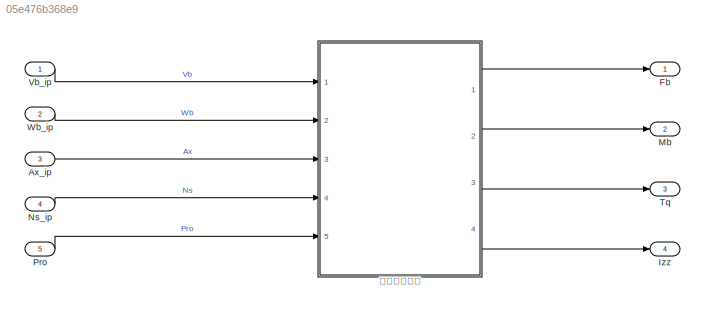
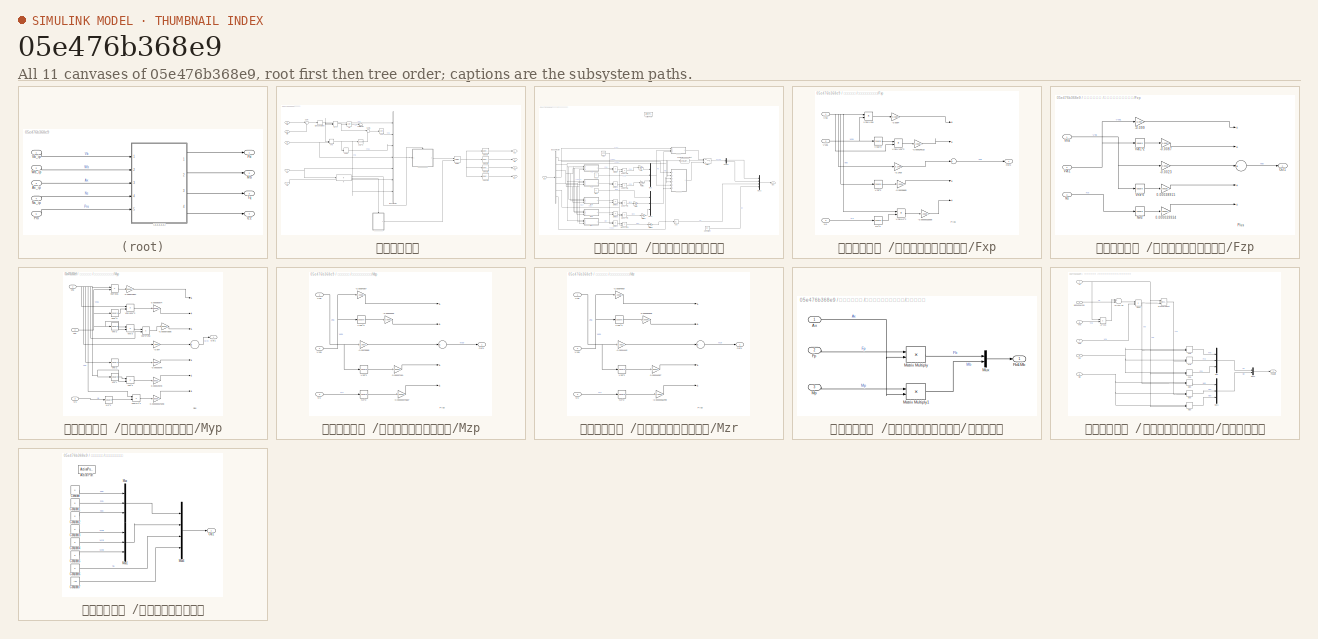
[diagram: thumbnail index - all 11 canvases of the model, root first then tree order]
MODEL slx_05e476b368e9
KIND model
CONFIG AbsTol = auto
CONFIG EnableMultiTasking = off
CONFIG FixedStep = auto
CONFIG MaxStep = auto
CONFIG MinStep = auto
CONFIG RelTol = 1e-3
CONFIG SampleTimeConstraint = Unconstrained
CONFIG Solver = FixedStepAuto
CONFIG SolverName = FixedStepAuto
CONFIG StartTime = 0.0
CONFIG StopTime = 10.0
BLOCK [Inport] Ax_ip
  IconDisplay = Port number
  Port = 3
  PortDimensions = 3
BLOCK [Outport] Fb
  IconDisplay = Port number
BLOCK [Outport] Izz
  IconDisplay = Port number
  Port = 4
BLOCK [Outport] Mb
  IconDisplay = Port number
  Port = 2
BLOCK [Inport] Ns_ip
  IconDisplay = Port number
  Port = 4
  PortDimensions = 1
BLOCK [Inport] Pro
  IconDisplay = Port number
  Port = 5
  PortDimensions = 1
BLOCK [Outport] Tq
  IconDisplay = Port number
  Port = 3
BLOCK [Inport] Vb_ip
  IconDisplay = Port number
  PortDimensions = 3
BLOCK [Inport] Wb_ip
  IconDisplay = Port number
  Port = 2
  PortDimensions = 3
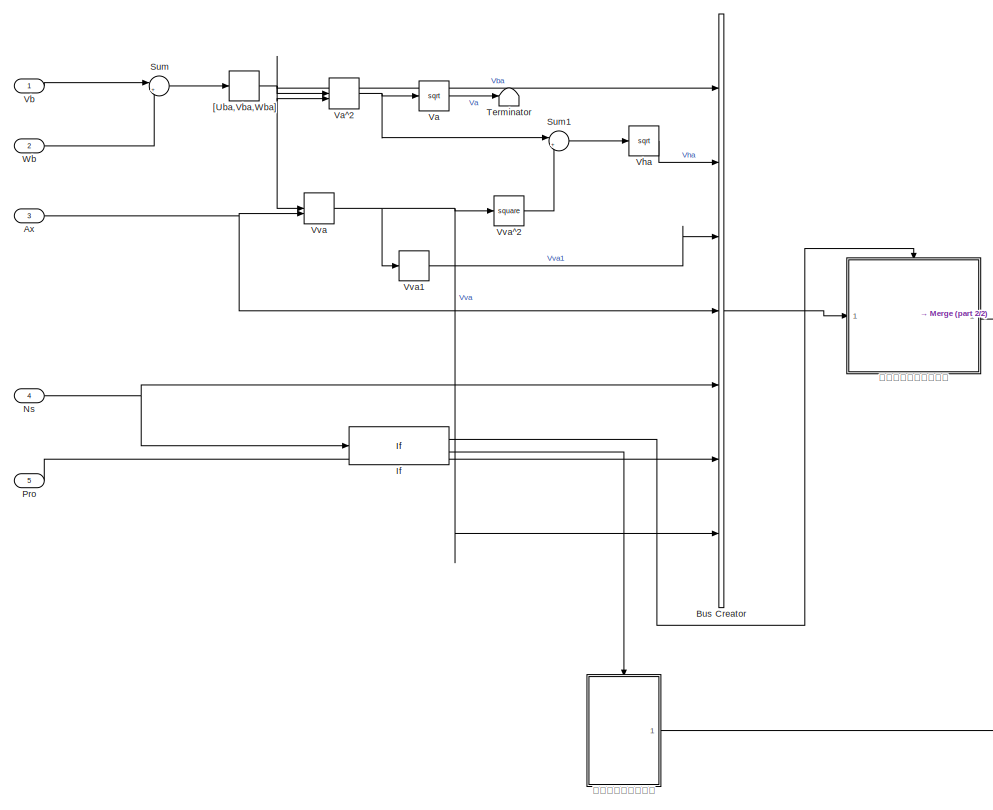
[diagram: 涵道风扇模型  - part 1/2, left side, full height]
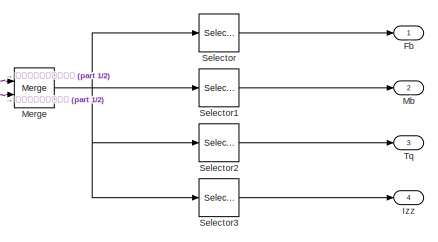
[diagram: 涵道风扇模型  - part 2/2, middle right region]
BLOCK [SubSystem] 涵道风扇模型 
  Ports = [5, 4]
  RequestExecContextInheritance = off
BLOCK [Inport] 涵道风扇模型 /Ax
  IconDisplay = Port number
  Port = 3
BLOCK [BusCreator] 涵道风扇模型 /Bus Creator
  DisplayOption = bar
  InheritFromInputs = on
  Inputs = 7
  Ports = [7, 1]
BLOCK [Outport] 涵道风扇模型 /Fb
  IconDisplay = Port number
BLOCK [If] 涵道风扇模型 /If
  IfExpression = u1 > 1
  Ports = [1, 2]
BLOCK [Outport] 涵道风扇模型 /Izz
  IconDisplay = Port number
  Port = 4
BLOCK [Outport] 涵道风扇模型 /Mb
  IconDisplay = Port number
  Port = 2
BLOCK [Merge] 涵道风扇模型 /Merge
  Ports = [2, 1]
BLOCK [Inport] 涵道风扇模型 /Ns
  IconDisplay = Port number
  Port = 4
BLOCK [Inport] 涵道风扇模型 /Pro
  IconDisplay = Port number
  Port = 5
BLOCK [Selector] 涵道风扇模型 /Selector
  IndexOptions = Index vector (dialog)
  Indices = [1:3]
  InputPortWidth = 8
  OutputSizes = 1
  Ports = [1, 1]
BLOCK [Selector] 涵道风扇模型 /Selector1
  IndexOptions = Index vector (dialog)
  Indices = [4:6]
  InputPortWidth = 8
  OutputSizes = 1
  Ports = [1, 1]
BLOCK [Selector] 涵道风扇模型 /Selector2
  IndexOptions = Index vector (dialog)
  Indices = [7]
  InputPortWidth = 8
  OutputSizes = 1
  Ports = [1, 1]
BLOCK [Selector] 涵道风扇模型 /Selector3
  IndexOptions = Index vector (dialog)
  Indices = 8
  InputPortWidth = 8
  OutputSizes = 1
  Ports = [1, 1]
BLOCK [Sum] 涵道风扇模型 /Sum
  IconShape = round
  InputSameDT = off
  Inputs = |+-
  OutDataTypeStr = Inherit: Inherit via internal rule
  Ports = [2, 1]
  SaturateOnIntegerOverflow = off
BLOCK [Sum] 涵道风扇模型 /Sum1
  IconShape = round
  InputSameDT = off
  Inputs = |+-
  OutDataTypeStr = Inherit: Inherit via internal rule
  Ports = [2, 1]
  SaturateOnIntegerOverflow = off
BLOCK [Terminator] 涵道风扇模型 /Terminator
BLOCK [Outport] 涵道风扇模型 /Tq
  IconDisplay = Port number
  Port = 3
BLOCK [Sqrt] 涵道风扇模型 /Va
BLOCK [DotProduct] 涵道风扇模型 /Va^2
  OutDataTypeStr = Inherit: Inherit via internal rule
BLOCK [Inport] 涵道风扇模型 /Vb
  IconDisplay = Port number
BLOCK [Sqrt] 涵道风扇模型 /Vha
BLOCK [DotProduct] 涵道风扇模型 /Vva
  OutDataTypeStr = Inherit: Inherit via internal rule
BLOCK [UnaryMinus] 涵道风扇模型 /Vva1
BLOCK [Math] 涵道风扇模型 /Vva^2
  Operator = square
  Ports = [1, 1]
BLOCK [Inport] 涵道风扇模型 /Wb
  IconDisplay = Port number
  Port = 2
BLOCK [UnaryMinus] 涵道风扇模型 /[Uba,Vba,Wba]
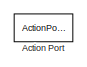
[diagram: 涵道风扇模型 /求解涵道风扇气动载荷 - part 1/4, top center region]
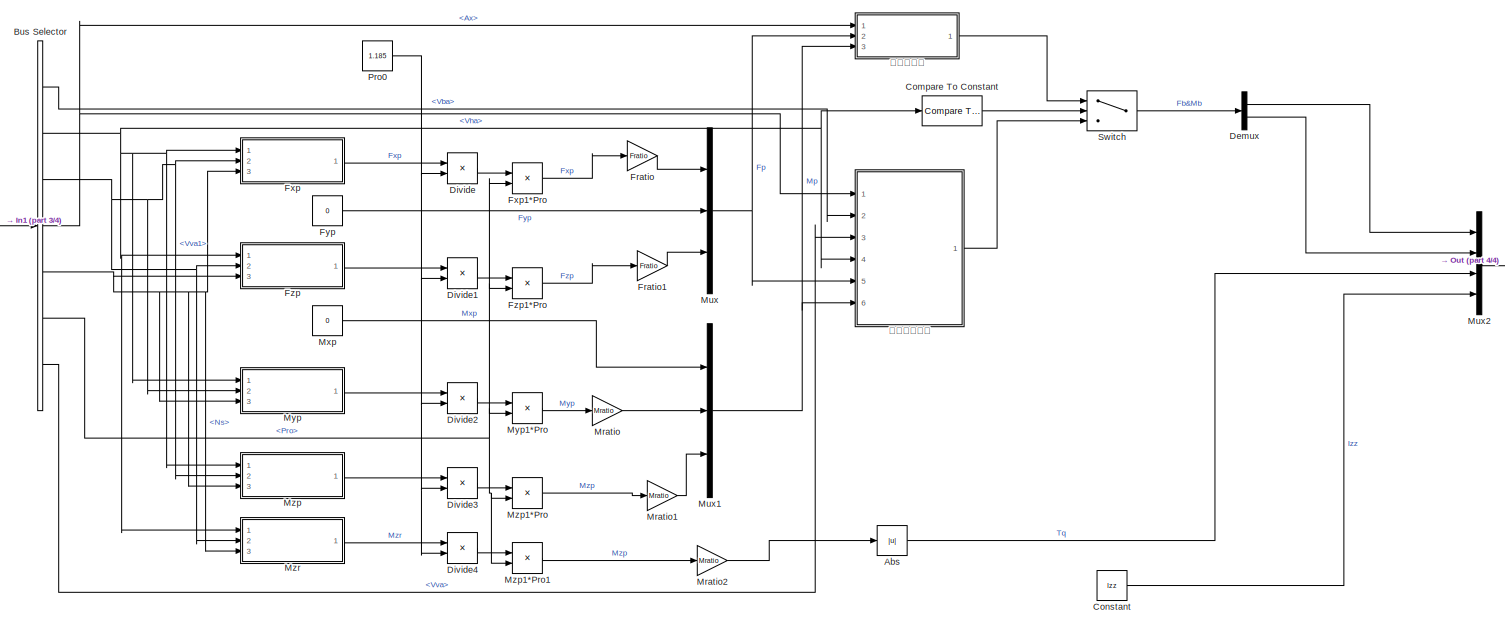
[diagram: 涵道风扇模型 /求解涵道风扇气动载荷 - part 2/4, full width, middle band]
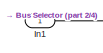
[diagram: 涵道风扇模型 /求解涵道风扇气动载荷 - part 3/4, middle left region]
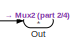
[diagram: 涵道风扇模型 /求解涵道风扇气动载荷 - part 4/4, middle right region]
BLOCK [SubSystem] 涵道风扇模型 /求解涵道风扇气动载荷
  Ports = [1, 1, 0, 0, 0, 0, 0, 1]
  RequestExecContextInheritance = off
  TreatAsAtomicUnit = on
BLOCK [Abs] 涵道风扇模型 /求解涵道风扇气动载荷/Abs
  SaturateOnIntegerOverflow = off
BLOCK [ActionPort] 涵道风扇模型 /求解涵道风扇气动载荷/Action Port
  ActionType = then
BLOCK [BusSelector] 涵道风扇模型 /求解涵道风扇气动载荷/Bus Selector
  OutputAsBus = off
  OutputSignals = Vba,Vha,Vva1,Ax,Ns,Pro,Vva
  Ports = [1, 7]
BLOCK [Reference] 涵道风扇模型 /求解涵道风扇气动载荷/Compare To Constant  REF=simulink/Logic and Bit
Operations/Compare
To Constant
  Ports = [1, 1]
  SourceBlock = simulink/Logic and Bit\nOperations/Compare\nTo Constant
  SourceProductBaseCode = SL
  SourceProductName = Simulink
  SourceType = Compare To Constant
BLOCK [Constant] 涵道风扇模型 /求解涵道风扇气动载荷/Constant
  Value = Izz
BLOCK [Demux] 涵道风扇模型 /求解涵道风扇气动载荷/Demux
  DisplayOption = bar
  Outputs = 2
  Ports = [1, 2]
BLOCK [Product] 涵道风扇模型 /求解涵道风扇气动载荷/Divide
  InputSameDT = off
  Inputs = */
  OutDataTypeStr = Inherit: Inherit via internal rule
  Ports = [2, 1]
  RndMeth = Floor
  SaturateOnIntegerOverflow = off
BLOCK [Product] 涵道风扇模型 /求解涵道风扇气动载荷/Divide1
  InputSameDT = off
  Inputs = */
  OutDataTypeStr = Inherit: Inherit via internal rule
  Ports = [2, 1]
  RndMeth = Floor
  SaturateOnIntegerOverflow = off
BLOCK [Product] 涵道风扇模型 /求解涵道风扇气动载荷/Divide2
  InputSameDT = off
  Inputs = */
  OutDataTypeStr = Inherit: Inherit via internal rule
  Ports = [2, 1]
  RndMeth = Floor
  SaturateOnIntegerOverflow = off
BLOCK [Product] 涵道风扇模型 /求解涵道风扇气动载荷/Divide3
  InputSameDT = off
  Inputs = */
  OutDataTypeStr = Inherit: Inherit via internal rule
  Ports = [2, 1]
  RndMeth = Floor
  SaturateOnIntegerOverflow = off
BLOCK [Product] 涵道风扇模型 /求解涵道风扇气动载荷/Divide4
  InputSameDT = off
  Inputs = */
  OutDataTypeStr = Inherit: Inherit via internal rule
  Ports = [2, 1]
  RndMeth = Floor
  SaturateOnIntegerOverflow = off
BLOCK [Gain] 涵道风扇模型 /求解涵道风扇气动载荷/Fratio
  Gain = Fratio
  OutDataTypeStr = Inherit: Inherit via internal rule
  ParamDataTypeStr = Inherit: Inherit via internal rule
  SaturateOnIntegerOverflow = off
BLOCK [Gain] 涵道风扇模型 /求解涵道风扇气动载荷/Fratio1
  Gain = Fratio
  OutDataTypeStr = Inherit: Inherit via internal rule
  ParamDataTypeStr = Inherit: Inherit via internal rule
  SaturateOnIntegerOverflow = off
BLOCK [SubSystem] 涵道风扇模型 /求解涵道风扇气动载荷/Fxp
  Ports = [3, 1]
  RequestExecContextInheritance = off
BLOCK [Gain] 涵道风扇模型 /求解涵道风扇气动载荷/Fxp/-0.00000033698
  Gain = -0.00000033698
  OutDataTypeStr = Inherit: Inherit via internal rule
  ParamDataTypeStr = Inherit: Inherit via internal rule
  SaturateOnIntegerOverflow = off
BLOCK [Gain] 涵道风扇模型 /求解涵道风扇气动载荷/Fxp/-0.000024833
  Gain = -0.000024833
  OutDataTypeStr = Inherit: Inherit via internal rule
  ParamDataTypeStr = Inherit: Inherit via internal rule
  SaturateOnIntegerOverflow = off
BLOCK [Gain] 涵道风扇模型 /求解涵道风扇气动载荷/Fxp/-0.00039865
  Gain = -0.00039865
  OutDataTypeStr = Inherit: Inherit via internal rule
  ParamDataTypeStr = Inherit: Inherit via internal rule
  SaturateOnIntegerOverflow = off
BLOCK [Gain] 涵道风扇模型 /求解涵道风扇气动载荷/Fxp/-0.0084
  Gain = -0.0084
  OutDataTypeStr = Inherit: Inherit via internal rule
  ParamDataTypeStr = Inherit: Inherit via internal rule
  SaturateOnIntegerOverflow = off
BLOCK [Gain] 涵道风扇模型 /求解涵道风扇气动载荷/Fxp/-0.1409
  Gain = -0.1409
  OutDataTypeStr = Inherit: Inherit via internal rule
  ParamDataTypeStr = Inherit: Inherit via internal rule
  SaturateOnIntegerOverflow = off
BLOCK [Inport] 涵道风扇模型 /求解涵道风扇气动载荷/Fxp/Ns
  IconDisplay = Port number
  Port = 3
BLOCK [Math] 涵道风扇模型 /求解涵道风扇气动载荷/Fxp/Ns^2
  Operator = square
  Ports = [1, 1]
BLOCK [Outport] 涵道风扇模型 /求解涵道风扇气动载荷/Fxp/Out1
  IconDisplay = Port number
BLOCK [Sum] 涵道风扇模型 /求解涵道风扇气动载荷/Fxp/Plus
  InputSameDT = off
  Inputs = +++++
  OutDataTypeStr = Inherit: Inherit via internal rule
  Ports = [5, 1]
  SaturateOnIntegerOverflow = off
BLOCK [Inport] 涵道风扇模型 /求解涵道风扇气动载荷/Fxp/Vha
  IconDisplay = Port number
BLOCK [Product] 涵道风扇模型 /求解涵道风扇气动载荷/Fxp/Vha*Ns^2
  InputSameDT = off
  OutDataTypeStr = Inherit: Inherit via internal rule
  Ports = [2, 1]
  RndMeth = Floor
  SaturateOnIntegerOverflow = off
BLOCK [Product] 涵道风扇模型 /求解涵道风扇气动载荷/Fxp/Vha*Vva1
  InputSameDT = off
  OutDataTypeStr = Inherit: Inherit via internal rule
  Ports = [2, 1]
  RndMeth = Floor
  SaturateOnIntegerOverflow = off
BLOCK [Product] 涵道风扇模型 /求解涵道风扇气动载荷/Fxp/Vha*Vva1^2
  InputSameDT = off
  OutDataTypeStr = Inherit: Inherit via internal rule
  Ports = [2, 1]
  RndMeth = Floor
  SaturateOnIntegerOverflow = off
BLOCK [Math] 涵道风扇模型 /求解涵道风扇气动载荷/Fxp/Vha^2
  Operator = square
  Ports = [1, 1]
BLOCK [Inport] 涵道风扇模型 /求解涵道风扇气动载荷/Fxp/Vva1
  IconDisplay = Port number
  Port = 2
BLOCK [Math] 涵道风扇模型 /求解涵道风扇气动载荷/Fxp/Vva1^2
  Operator = square
  Ports = [1, 1]
BLOCK [Product] 涵道风扇模型 /求解涵道风扇气动载荷/Fxp1*Pro
  InputSameDT = off
  OutDataTypeStr = Inherit: Inherit via internal rule
  Ports = [2, 1]
  RndMeth = Floor
  SaturateOnIntegerOverflow = off
BLOCK [Constant] 涵道风扇模型 /求解涵道风扇气动载荷/Fyp
  Value = 0
BLOCK [SubSystem] 涵道风扇模型 /求解涵道风扇气动载荷/Fzp
  Ports = [3, 1]
  RequestExecContextInheritance = off
BLOCK [Gain] 涵道风扇模型 /求解涵道风扇气动载荷/Fzp/-0.0023
  Gain = -0.0023
  OutDataTypeStr = Inherit: Inherit via internal rule
  ParamDataTypeStr = Inherit: Inherit via internal rule
  SaturateOnIntegerOverflow = off
BLOCK [Gain] 涵道风扇模型 /求解涵道风扇气动载荷/Fzp/-0.0087
  Gain = -0.0087
  OutDataTypeStr = Inherit: Inherit via internal rule
  ParamDataTypeStr = Inherit: Inherit via internal rule
  SaturateOnIntegerOverflow = off
BLOCK [Gain] 涵道风扇模型 /求解涵道风扇气动载荷/Fzp/-0.099
  Gain = -0.099
  OutDataTypeStr = Inherit: Inherit via internal rule
  ParamDataTypeStr = Inherit: Inherit via internal rule
  SaturateOnIntegerOverflow = off
BLOCK [Gain] 涵道风扇模型 /求解涵道风扇气动载荷/Fzp/0.000039934
  Gain = 0.000039934
  OutDataTypeStr = Inherit: Inherit via internal rule
  ParamDataTypeStr = Inherit: Inherit via internal rule
  SaturateOnIntegerOverflow = off
BLOCK [Gain] 涵道风扇模型 /求解涵道风扇气动载荷/Fzp/0.00038915
  Gain = 0.00038915
  OutDataTypeStr = Inherit: Inherit via internal rule
  ParamDataTypeStr = Inherit: Inherit via internal rule
  SaturateOnIntegerOverflow = off
BLOCK [Inport] 涵道风扇模型 /求解涵道风扇气动载荷/Fzp/Ns
  IconDisplay = Port number
  Port = 3
BLOCK [Math] 涵道风扇模型 /求解涵道风扇气动载荷/Fzp/Ns^2
  Operator = square
  Ports = [1, 1]
BLOCK [Outport] 涵道风扇模型 /求解涵道风扇气动载荷/Fzp/Out1
  IconDisplay = Port number
BLOCK [Sum] 涵道风扇模型 /求解涵道风扇气动载荷/Fzp/Plus
  InputSameDT = off
  Inputs = +++++
  OutDataTypeStr = Inherit: Inherit via internal rule
  Ports = [5, 1]
  SaturateOnIntegerOverflow = off
BLOCK [Inport] 涵道风扇模型 /求解涵道风扇气动载荷/Fzp/Vha
  IconDisplay = Port number
BLOCK [Math] 涵道风扇模型 /求解涵道风扇气动载荷/Fzp/Vha^2
  Operator = square
  Ports = [1, 1]
BLOCK [Inport] 涵道风扇模型 /求解涵道风扇气动载荷/Fzp/Vva1
  IconDisplay = Port number
  Port = 2
BLOCK [Math] 涵道风扇模型 /求解涵道风扇气动载荷/Fzp/Vva1^2
  Operator = square
  Ports = [1, 1]
BLOCK [Product] 涵道风扇模型 /求解涵道风扇气动载荷/Fzp1*Pro
  InputSameDT = off
  OutDataTypeStr = Inherit: Inherit via internal rule
  Ports = [2, 1]
  RndMeth = Floor
  SaturateOnIntegerOverflow = off
BLOCK [Inport] 涵道风扇模型 /求解涵道风扇气动载荷/In1
  IconDisplay = Port number
BLOCK [Gain] 涵道风扇模型 /求解涵道风扇气动载荷/Mratio
  Gain = Mratio
  OutDataTypeStr = Inherit: Inherit via internal rule
  ParamDataTypeStr = Inherit: Inherit via internal rule
  SaturateOnIntegerOverflow = off
BLOCK [Gain] 涵道风扇模型 /求解涵道风扇气动载荷/Mratio1
  Gain = Mratio
  OutDataTypeStr = Inherit: Inherit via internal rule
  ParamDataTypeStr = Inherit: Inherit via internal rule
  SaturateOnIntegerOverflow = off
BLOCK [Gain] 涵道风扇模型 /求解涵道风扇气动载荷/Mratio2
  Gain = Mratio
  OutDataTypeStr = Inherit: Inherit via internal rule
  ParamDataTypeStr = Inherit: Inherit via internal rule
  SaturateOnIntegerOverflow = off
BLOCK [Mux] 涵道风扇模型 /求解涵道风扇气动载荷/Mux
  DisplayOption = bar
  Inputs = 3
  Ports = [3, 1]
BLOCK [Mux] 涵道风扇模型 /求解涵道风扇气动载荷/Mux1
  DisplayOption = bar
  Inputs = 3
  Ports = [3, 1]
BLOCK [Mux] 涵道风扇模型 /求解涵道风扇气动载荷/Mux2
  DisplayOption = bar
  Ports = [4, 1]
BLOCK [Constant] 涵道风扇模型 /求解涵道风扇气动载荷/Mxp
  Value = 0
BLOCK [SubSystem] 涵道风扇模型 /求解涵道风扇气动载荷/Myp
  Ports = [3, 1]
  RequestExecContextInheritance = off
BLOCK [Gain] 涵道风扇模型 /求解涵道风扇气动载荷/Myp/-0.000000024698
  Gain = -0.000000024698
  OutDataTypeStr = Inherit: Inherit via internal rule
  ParamDataTypeStr = Inherit: Inherit via internal rule
  SaturateOnIntegerOverflow = off
BLOCK [Gain] 涵道风扇模型 /求解涵道风扇气动载荷/Myp/-0.0000073885
  Gain = -0.0000073885
  OutDataTypeStr = Inherit: Inherit via internal rule
  ParamDataTypeStr = Inherit: Inherit via internal rule
  SaturateOnIntegerOverflow = off
BLOCK [Gain] 涵道风扇模型 /求解涵道风扇气动载荷/Myp/-0.000073851
  Gain = -0.000073851
  OutDataTypeStr = Inherit: Inherit via internal rule
  ParamDataTypeStr = Inherit: Inherit via internal rule
  SaturateOnIntegerOverflow = off
BLOCK [Gain] 涵道风扇模型 /求解涵道风扇气动载荷/Myp/-0.00039345
  Gain = -0.00039345
  OutDataTypeStr = Inherit: Inherit via internal rule
  ParamDataTypeStr = Inherit: Inherit via internal rule
  SaturateOnIntegerOverflow = off
BLOCK [Gain] 涵道风扇模型 /求解涵道风扇气动载荷/Myp/-0.004
  Gain = -0.004
  OutDataTypeStr = Inherit: Inherit via internal rule
  ParamDataTypeStr = Inherit: Inherit via internal rule
  SaturateOnIntegerOverflow = off
BLOCK [Gain] 涵道风扇模型 /求解涵道风扇气动载荷/Myp/0.000019078
  Gain = 0.000019078
  OutDataTypeStr = Inherit: Inherit via internal rule
  ParamDataTypeStr = Inherit: Inherit via internal rule
  SaturateOnIntegerOverflow = off
BLOCK [Gain] 涵道风扇模型 /求解涵道风扇气动载荷/Myp/0.000080674
  Gain = 0.000080674
  OutDataTypeStr = Inherit: Inherit via internal rule
  ParamDataTypeStr = Inherit: Inherit via internal rule
  SaturateOnIntegerOverflow = off
BLOCK [Inport] 涵道风扇模型 /求解涵道风扇气动载荷/Myp/Ns
  IconDisplay = Port number
  Port = 3
BLOCK [Math] 涵道风扇模型 /求解涵道风扇气动载荷/Myp/Ns^2
  Operator = square
  Ports = [1, 1]
BLOCK [Outport] 涵道风扇模型 /求解涵道风扇气动载荷/Myp/Out1
  IconDisplay = Port number
BLOCK [Sum] 涵道风扇模型 /求解涵道风扇气动载荷/Myp/Plus
  InputSameDT = off
  Inputs = +++++++
  OutDataTypeStr = Inherit: Inherit via internal rule
  Ports = [7, 1]
  SaturateOnIntegerOverflow = off
BLOCK [Inport] 涵道风扇模型 /求解涵道风扇气动载荷/Myp/Vha
  IconDisplay = Port number
BLOCK [Product] 涵道风扇模型 /求解涵道风扇气动载荷/Myp/Vha*Ns^2
  InputSameDT = off
  OutDataTypeStr = Inherit: Inherit via internal rule
  Ports = [2, 1]
  RndMeth = Floor
  SaturateOnIntegerOverflow = off
BLOCK [Product] 涵道风扇模型 /求解涵道风扇气动载荷/Myp/Vha*Vva1
  InputSameDT = off
  OutDataTypeStr = Inherit: Inherit via internal rule
  Ports = [2, 1]
  RndMeth = Floor
  SaturateOnIntegerOverflow = off
BLOCK [Product] 涵道风扇模型 /求解涵道风扇气动载荷/Myp/Vha*Vva1^2
  InputSameDT = off
  OutDataTypeStr = Inherit: Inherit via internal rule
  Ports = [2, 1]
  RndMeth = Floor
  SaturateOnIntegerOverflow = off
BLOCK [Math] 涵道风扇模型 /求解涵道风扇气动载荷/Myp/Vha^1
  Operator = square
  Ports = [1, 1]
BLOCK [Math] 涵道风扇模型 /求解涵道风扇气动载荷/Myp/Vha^2
  Operator = square
  Ports = [1, 1]
BLOCK [Product] 涵道风扇模型 /求解涵道风扇气动载荷/Myp/Vha^3
  InputSameDT = off
  OutDataTypeStr = Inherit: Inherit via internal rule
  Ports = [2, 1]
  RndMeth = Floor
  SaturateOnIntegerOverflow = off
BLOCK [Inport] 涵道风扇模型 /求解涵道风扇气动载荷/Myp/Vva
  IconDisplay = Port number
  Port = 2
BLOCK [Math] 涵道风扇模型 /求解涵道风扇气动载荷/Myp/Vva1^2
  Operator = square
  Ports = [1, 1]
BLOCK [Math] 涵道风扇模型 /求解涵道风扇气动载荷/Myp/Vva^2
  Operator = square
  Ports = [1, 1]
BLOCK [Product] 涵道风扇模型 /求解涵道风扇气动载荷/Myp/Vva^3
  InputSameDT = off
  OutDataTypeStr = Inherit: Inherit via internal rule
  Ports = [2, 1]
  RndMeth = Floor
  SaturateOnIntegerOverflow = off
BLOCK [Product] 涵道风扇模型 /求解涵道风扇气动载荷/Myp/Vva^3*Vha
  InputSameDT = off
  OutDataTypeStr = Inherit: Inherit via internal rule
  Ports = [2, 1]
  RndMeth = Floor
  SaturateOnIntegerOverflow = off
BLOCK [Product] 涵道风扇模型 /求解涵道风扇气动载荷/Myp1*Pro
  InputSameDT = off
  OutDataTypeStr = Inherit: Inherit via internal rule
  Ports = [2, 1]
  RndMeth = Floor
  SaturateOnIntegerOverflow = off
BLOCK [SubSystem] 涵道风扇模型 /求解涵道风扇气动载荷/Mzp
  Ports = [3, 1]
  RequestExecContextInheritance = off
BLOCK [Gain] 涵道风扇模型 /求解涵道风扇气动载荷/Mzp/-0.000000073587 
  Gain = 0.000000073587
  OutDataTypeStr = Inherit: Inherit via internal rule
  ParamDataTypeStr = Inherit: Inherit via internal rule
  SaturateOnIntegerOverflow = off
BLOCK [Gain] 涵道风扇模型 /求解涵道风扇气动载荷/Mzp/-0.00002915
  Gain = -0.00002915
  OutDataTypeStr = Inherit: Inherit via internal rule
  ParamDataTypeStr = Inherit: Inherit via internal rule
  SaturateOnIntegerOverflow = off
BLOCK [Gain] 涵道风扇模型 /求解涵道风扇气动载荷/Mzp/-0.00078585
  Gain = -0.00078585
  OutDataTypeStr = Inherit: Inherit via internal rule
  ParamDataTypeStr = Inherit: Inherit via internal rule
  SaturateOnIntegerOverflow = off
BLOCK [Gain] 涵道风扇模型 /求解涵道风扇气动载荷/Mzp/-0.00084367
  Gain = -0.00084367
  OutDataTypeStr = Inherit: Inherit via internal rule
  ParamDataTypeStr = Inherit: Inherit via internal rule
  SaturateOnIntegerOverflow = off
BLOCK [Gain] 涵道风扇模型 /求解涵道风扇气动载荷/Mzp/0.000027461
  Gain = 0.000027461
  OutDataTypeStr = Inherit: Inherit via internal rule
  ParamDataTypeStr = Inherit: Inherit via internal rule
  SaturateOnIntegerOverflow = off
BLOCK [Inport] 涵道风扇模型 /求解涵道风扇气动载荷/Mzp/Ns
  IconDisplay = Port number
  Port = 3
BLOCK [Math] 涵道风扇模型 /求解涵道风扇气动载荷/Mzp/Ns^2
  Operator = square
  Ports = [1, 1]
BLOCK [Outport] 涵道风扇模型 /求解涵道风扇气动载荷/Mzp/Out1
  IconDisplay = Port number
BLOCK [Sum] 涵道风扇模型 /求解涵道风扇气动载荷/Mzp/Plus
  InputSameDT = off
  Inputs = +++++
  OutDataTypeStr = Inherit: Inherit via internal rule
  Ports = [5, 1]
  SaturateOnIntegerOverflow = off
BLOCK [Inport] 涵道风扇模型 /求解涵道风扇气动载荷/Mzp/Vha
  IconDisplay = Port number
BLOCK [Math] 涵道风扇模型 /求解涵道风扇气动载荷/Mzp/Vha^2
  Operator = square
  Ports = [1, 1]
BLOCK [Inport] 涵道风扇模型 /求解涵道风扇气动载荷/Mzp/Vva1
  IconDisplay = Port number
  Port = 2
BLOCK [Math] 涵道风扇模型 /求解涵道风扇气动载荷/Mzp/Vva1^2
  Operator = square
  Ports = [1, 1]
BLOCK [Product] 涵道风扇模型 /求解涵道风扇气动载荷/Mzp1*Pro
  InputSameDT = off
  OutDataTypeStr = Inherit: Inherit via internal rule
  Ports = [2, 1]
  RndMeth = Floor
  SaturateOnIntegerOverflow = off
BLOCK [Product] 涵道风扇模型 /求解涵道风扇气动载荷/Mzp1*Pro1
  InputSameDT = off
  OutDataTypeStr = Inherit: Inherit via internal rule
  Ports = [2, 1]
  RndMeth = Floor
  SaturateOnIntegerOverflow = off
BLOCK [SubSystem] 涵道风扇模型 /求解涵道风扇气动载荷/Mzr
  Ports = [3, 1]
  RequestExecContextInheritance = off
BLOCK [Gain] 涵道风扇模型 /求解涵道风扇气动载荷/Mzr/-0.00000055499 
  Gain = -0.00000055499
  OutDataTypeStr = Inherit: Inherit via internal rule
  ParamDataTypeStr = Inherit: Inherit via internal rule
  SaturateOnIntegerOverflow = off
BLOCK [Gain] 涵道风扇模型 /求解涵道风扇气动载荷/Mzr/-0.00014442
  Gain = -0.00014442
  OutDataTypeStr = Inherit: Inherit via internal rule
  ParamDataTypeStr = Inherit: Inherit via internal rule
  SaturateOnIntegerOverflow = off
BLOCK [Gain] 涵道风扇模型 /求解涵道风扇气动载荷/Mzr/-0.00084069
  Gain = -0.00084069
  OutDataTypeStr = Inherit: Inherit via internal rule
  ParamDataTypeStr = Inherit: Inherit via internal rule
  SaturateOnIntegerOverflow = off
BLOCK [Gain] 涵道风扇模型 /求解涵道风扇气动载荷/Mzr/0.000016357
  Gain = 0.000016357
  OutDataTypeStr = Inherit: Inherit via internal rule
  ParamDataTypeStr = Inherit: Inherit via internal rule
  SaturateOnIntegerOverflow = off
BLOCK [Gain] 涵道风扇模型 /求解涵道风扇气动载荷/Mzr/0.000052505
  Gain = 0.000052505
  OutDataTypeStr = Inherit: Inherit via internal rule
  ParamDataTypeStr = Inherit: Inherit via internal rule
  SaturateOnIntegerOverflow = off
BLOCK [Inport] 涵道风扇模型 /求解涵道风扇气动载荷/Mzr/Ns
  IconDisplay = Port number
  Port = 3
BLOCK [Math] 涵道风扇模型 /求解涵道风扇气动载荷/Mzr/Ns^2
  Operator = square
  Ports = [1, 1]
BLOCK [Outport] 涵道风扇模型 /求解涵道风扇气动载荷/Mzr/Out1
  IconDisplay = Port number
BLOCK [Sum] 涵道风扇模型 /求解涵道风扇气动载荷/Mzr/Plus
  InputSameDT = off
  Inputs = +++++
  OutDataTypeStr = Inherit: Inherit via internal rule
  Ports = [5, 1]
  SaturateOnIntegerOverflow = off
BLOCK [Inport] 涵道风扇模型 /求解涵道风扇气动载荷/Mzr/Vha
  IconDisplay = Port number
BLOCK [Math] 涵道风扇模型 /求解涵道风扇气动载荷/Mzr/Vha^2
  Operator = square
  Ports = [1, 1]
BLOCK [Inport] 涵道风扇模型 /求解涵道风扇气动载荷/Mzr/Vva1
  IconDisplay = Port number
  Port = 2
BLOCK [Math] 涵道风扇模型 /求解涵道风扇气动载荷/Mzr/Vva1^2
  Operator = square
  Ports = [1, 1]
BLOCK [Outport] 涵道风扇模型 /求解涵道风扇气动载荷/Out
  IconDisplay = Port number
BLOCK [Constant] 涵道风扇模型 /求解涵道风扇气动载荷/Pro0
  Value = 1.185
BLOCK [Switch] 涵道风扇模型 /求解涵道风扇气动载荷/Switch
  Criteria = u2 > Threshold
  InputSameDT = off
  SaturateOnIntegerOverflow = off
BLOCK [SubSystem] 涵道风扇模型 /求解涵道风扇气动载荷/切向速度低
  Ports = [3, 1]
  RequestExecContextInheritance = off
BLOCK [Inport] 涵道风扇模型 /求解涵道风扇气动载荷/切向速度低/Ax
  IconDisplay = Port number
BLOCK [Outport] 涵道风扇模型 /求解涵道风扇气动载荷/切向速度低/Fb&Mb
  IconDisplay = Port number
BLOCK [Inport] 涵道风扇模型 /求解涵道风扇气动载荷/切向速度低/Fp
  IconDisplay = Port number
  Port = 2
BLOCK [Product] 涵道风扇模型 /求解涵道风扇气动载荷/切向速度低/Matrix Multiply
  InputSameDT = off
  OutDataTypeStr = Inherit: Inherit via internal rule
  Ports = [2, 1]
  RndMeth = Floor
  SaturateOnIntegerOverflow = off
BLOCK [Product] 涵道风扇模型 /求解涵道风扇气动载荷/切向速度低/Matrix Multiply1
  InputSameDT = off
  OutDataTypeStr = Inherit: Inherit via internal rule
  Ports = [2, 1]
  RndMeth = Floor
  SaturateOnIntegerOverflow = off
BLOCK [Inport] 涵道风扇模型 /求解涵道风扇气动载荷/切向速度低/Mp
  IconDisplay = Port number
  Port = 3
BLOCK [Mux] 涵道风扇模型 /求解涵道风扇气动载荷/切向速度低/Mux
  DisplayOption = bar
  Inputs = 2
  Ports = [2, 1]
BLOCK [SubSystem] 涵道风扇模型 /求解涵道风扇气动载荷/需要坐标转换
  Ports = [6, 1]
  RequestExecContextInheritance = off
BLOCK [Inport] 涵道风扇模型 /求解涵道风扇气动载荷/需要坐标转换/Az
  IconDisplay = Port number
BLOCK [Product] 涵道风扇模型 /求解涵道风扇气动载荷/需要坐标转换/Az*Vva
  InputSameDT = off
  OutDataTypeStr = Inherit: Inherit via internal rule
  Ports = [2, 1]
  RndMeth = Floor
  SaturateOnIntegerOverflow = off
BLOCK [Sum] 涵道风扇模型 /求解涵道风扇气动载荷/需要坐标转换/Az*Vva-Vb
  InputSameDT = off
  Inputs = +-
  OutDataTypeStr = Inherit: Inherit via internal rule
  Ports = [2, 1]
  SaturateOnIntegerOverflow = off
BLOCK [Reference] 涵道风扇模型 /求解涵道风扇气动载荷/需要坐标转换/Cross Product  REF=vrlib/Utilities/Cross Product
  Ports = [2, 1]
  SourceBlock = vrlib/Utilities/Cross Product
  SourceProductBaseCode = VR
  SourceProductName = Simulink 3D Animation
  SourceType = Cross Product
BLOCK [Product] 涵道风扇模型 /求解涵道风扇气动载荷/需要坐标转换/Divide
  InputSameDT = off
  Inputs = */
  OutDataTypeStr = Inherit: Inherit via internal rule
  Ports = [2, 1]
  RndMeth = Floor
  SaturateOnIntegerOverflow = off
BLOCK [Outport] 涵道风扇模型 /求解涵道风扇气动载荷/需要坐标转换/Fb&Mb
  IconDisplay = Port number
BLOCK [Inport] 涵道风扇模型 /求解涵道风扇气动载荷/需要坐标转换/Fp
  IconDisplay = Port number
  Port = 5
BLOCK [DotProduct] 涵道风扇模型 /求解涵道风扇气动载荷/需要坐标转换/Fxb
  OutDataTypeStr = Inherit: Inherit via internal rule
BLOCK [DotProduct] 涵道风扇模型 /求解涵道风扇气动载荷/需要坐标转换/Fyb
  OutDataTypeStr = Inherit: Inherit via internal rule
BLOCK [DotProduct] 涵道风扇模型 /求解涵道风扇气动载荷/需要坐标转换/Fzb
  OutDataTypeStr = Inherit: Inherit via internal rule
BLOCK [Inport] 涵道风扇模型 /求解涵道风扇气动载荷/需要坐标转换/Mp
  IconDisplay = Port number
  Port = 6
BLOCK [Mux] 涵道风扇模型 /求解涵道风扇气动载荷/需要坐标转换/Mux
  DisplayOption = bar
  Inputs = 3
  Ports = [3, 1]
BLOCK [Mux] 涵道风扇模型 /求解涵道风扇气动载荷/需要坐标转换/Mux1
  DisplayOption = bar
  Inputs = 3
  Ports = [3, 1]
BLOCK [Mux] 涵道风扇模型 /求解涵道风扇气动载荷/需要坐标转换/Mux2
  DisplayOption = bar
  Inputs = 2
  Ports = [2, 1]
BLOCK [DotProduct] 涵道风扇模型 /求解涵道风扇气动载荷/需要坐标转换/Mxb
  OutDataTypeStr = Inherit: Inherit via internal rule
BLOCK [DotProduct] 涵道风扇模型 /求解涵道风扇气动载荷/需要坐标转换/Myb
  OutDataTypeStr = Inherit: Inherit via internal rule
BLOCK [DotProduct] 涵道风扇模型 /求解涵道风扇气动载荷/需要坐标转换/Mzb
  OutDataTypeStr = Inherit: Inherit via internal rule
BLOCK [Inport] 涵道风扇模型 /求解涵道风扇气动载荷/需要坐标转换/Vha
  IconDisplay = Port number
  Port = 4
BLOCK [Inport] 涵道风扇模型 /求解涵道风扇气动载荷/需要坐标转换/Vva
  IconDisplay = Port number
  Port = 3
BLOCK [Inport] 涵道风扇模型 /求解涵道风扇气动载荷/需要坐标转换/[Uba, Vba, Wba]
  IconDisplay = Port number
  Port = 2
BLOCK [SubSystem] 涵道风扇模型 /转速太低无载荷输出
  Ports = [0, 1, 0, 0, 0, 0, 0, 1]
  RequestExecContextInheritance = off
  TreatAsAtomicUnit = on
BLOCK [ActionPort] 涵道风扇模型 /转速太低无载荷输出/Action Port
  ActionType = else
BLOCK [Constant] 涵道风扇模型 /转速太低无载荷输出/Constant
  Value = 0
BLOCK [Constant] 涵道风扇模型 /转速太低无载荷输出/Constant1
  Value = 0
BLOCK [Constant] 涵道风扇模型 /转速太低无载荷输出/Constant2
  Value = 0
BLOCK [Constant] 涵道风扇模型 /转速太低无载荷输出/Constant3
  Value = 0
BLOCK [Constant] 涵道风扇模型 /转速太低无载荷输出/Constant4
  Value = 0
BLOCK [Constant] 涵道风扇模型 /转速太低无载荷输出/Constant5
  Value = 0
BLOCK [Constant] 涵道风扇模型 /转速太低无载荷输出/Constant6
  Value = 0
BLOCK [Constant] 涵道风扇模型 /转速太低无载荷输出/Constant7
  Value = Izz
BLOCK [Mux] 涵道风扇模型 /转速太低无载荷输出/Mux
  DisplayOption = bar
  Inputs = 3
  Ports = [3, 1]
BLOCK [Mux] 涵道风扇模型 /转速太低无载荷输出/Mux1
  DisplayOption = bar
  Inputs = 3
  Ports = [3, 1]
BLOCK [Mux] 涵道风扇模型 /转速太低无载荷输出/Mux4
  DisplayOption = bar
  Ports = [4, 1]
BLOCK [Outport] 涵道风扇模型 /转速太低无载荷输出/Out1
  IconDisplay = Port number
LINE Ax_ip:1 -> 涵道风扇模型 :3
LINE Ns_ip:1 -> 涵道风扇模型 :4
LINE Pro:1 -> 涵道风扇模型 :5
LINE Vb_ip:1 -> 涵道风扇模型 :1
LINE Wb_ip:1 -> 涵道风扇模型 :2
NET 涵道风扇模型 /Ax:1 -> 涵道风扇模型 /Bus Creator:4, 涵道风扇模型 /Vva:2
LINE 涵道风扇模型 /Bus Creator:1 -> 涵道风扇模型 /求解涵道风扇气动载荷:1
LINE 涵道风扇模型 /If:1 -> 涵道风扇模型 /求解涵道风扇气动载荷:ifaction
LINE 涵道风扇模型 /If:2 -> 涵道风扇模型 /转速太低无载荷输出:ifaction
NET 涵道风扇模型 /Merge:1 -> 涵道风扇模型 /Selector1:1, 涵道风扇模型 /Selector2:1, 涵道风扇模型 /Selector3:1, 涵道风扇模型 /Selector:1
NET 涵道风扇模型 /Ns:1 -> 涵道风扇模型 /Bus Creator:5, 涵道风扇模型 /If:1
LINE 涵道风扇模型 /Pro:1 -> 涵道风扇模型 /Bus Creator:6
LINE 涵道风扇模型 /Selector1:1 -> 涵道风扇模型 /Mb:1
LINE 涵道风扇模型 /Selector2:1 -> 涵道风扇模型 /Tq:1
LINE 涵道风扇模型 /Selector3:1 -> 涵道风扇模型 /Izz:1
LINE 涵道风扇模型 /Selector:1 -> 涵道风扇模型 /Fb:1
LINE 涵道风扇模型 /Sum1:1 -> 涵道风扇模型 /Vha:1
LINE 涵道风扇模型 /Sum:1 -> 涵道风扇模型 /[Uba,Vba,Wba]:1
LINE 涵道风扇模型 /Va:1 -> 涵道风扇模型 /Terminator:1
NET 涵道风扇模型 /Va^2:1 -> 涵道风扇模型 /Sum1:1, 涵道风扇模型 /Va:1
LINE 涵道风扇模型 /Vb:1 -> 涵道风扇模型 /Sum:1
LINE 涵道风扇模型 /Vha:1 -> 涵道风扇模型 /Bus Creator:2
LINE 涵道风扇模型 /Vva1:1 -> 涵道风扇模型 /Bus Creator:3
NET 涵道风扇模型 /Vva:1 -> 涵道风扇模型 /Bus Creator:7, 涵道风扇模型 /Vva1:1, 涵道风扇模型 /Vva^2:1
LINE 涵道风扇模型 /Vva^2:1 -> 涵道风扇模型 /Sum1:2
LINE 涵道风扇模型 /Wb:1 -> 涵道风扇模型 /Sum:2
NET 涵道风扇模型 /[Uba,Vba,Wba]:1 -> 涵道风扇模型 /Bus Creator:1, 涵道风扇模型 /Va^2:1, 涵道风扇模型 /Va^2:2, 涵道风扇模型 /Vva:1
LINE 涵道风扇模型 /求解涵道风扇气动载荷/Abs:1 -> 涵道风扇模型 /求解涵道风扇气动载荷/Mux2:3
LINE 涵道风扇模型 /求解涵道风扇气动载荷/Bus Selector:1 -> 涵道风扇模型 /求解涵道风扇气动载荷/需要坐标转换:2
NET 涵道风扇模型 /求解涵道风扇气动载荷/Bus Selector:2 -> 涵道风扇模型 /求解涵道风扇气动载荷/Compare To Constant:1, 涵道风扇模型 /求解涵道风扇气动载荷/Fxp:1, 涵道风扇模型 /求解涵道风扇气动载荷/Fzp:1, 涵道风扇模型 /求解涵道风扇气动载荷/Myp:1, 涵道风扇模型 /求解涵道风扇气动载荷/Mzp:1, 涵道风扇模型 /求解涵道风扇气动载荷/Mzr:1, 涵道风扇模型 /求解涵道风扇气动载荷/需要坐标转换:4
NET 涵道风扇模型 /求解涵道风扇气动载荷/Bus Selector:3 -> 涵道风扇模型 /求解涵道风扇气动载荷/Fxp:2, 涵道风扇模型 /求解涵道风扇气动载荷/Fzp:2, 涵道风扇模型 /求解涵道风扇气动载荷/Myp:2, 涵道风扇模型 /求解涵道风扇气动载荷/Mzp:2, 涵道风扇模型 /求解涵道风扇气动载荷/Mzr:2
NET 涵道风扇模型 /求解涵道风扇气动载荷/Bus Selector:4 -> 涵道风扇模型 /求解涵道风扇气动载荷/切向速度低:1, 涵道风扇模型 /求解涵道风扇气动载荷/需要坐标转换:1
NET 涵道风扇模型 /求解涵道风扇气动载荷/Bus Selector:5 -> 涵道风扇模型 /求解涵道风扇气动载荷/Fxp:3, 涵道风扇模型 /求解涵道风扇气动载荷/Fzp:3, 涵道风扇模型 /求解涵道风扇气动载荷/Myp:3, 涵道风扇模型 /求解涵道风扇气动载荷/Mzp:3, 涵道风扇模型 /求解涵道风扇气动载荷/Mzr:3
NET 涵道风扇模型 /求解涵道风扇气动载荷/Bus Selector:6 -> 涵道风扇模型 /求解涵道风扇气动载荷/Fxp1*Pro:2, 涵道风扇模型 /求解涵道风扇气动载荷/Fzp1*Pro:2, 涵道风扇模型 /求解涵道风扇气动载荷/Myp1*Pro:2, 涵道风扇模型 /求解涵道风扇气动载荷/Mzp1*Pro1:2, 涵道风扇模型 /求解涵道风扇气动载荷/Mzp1*Pro:2
LINE 涵道风扇模型 /求解涵道风扇气动载荷/Bus Selector:7 -> 涵道风扇模型 /求解涵道风扇气动载荷/需要坐标转换:3
LINE 涵道风扇模型 /求解涵道风扇气动载荷/Compare To Constant:1 -> 涵道风扇模型 /求解涵道风扇气动载荷/Switch:2
LINE 涵道风扇模型 /求解涵道风扇气动载荷/Constant:1 -> 涵道风扇模型 /求解涵道风扇气动载荷/Mux2:4
LINE 涵道风扇模型 /求解涵道风扇气动载荷/Demux:1 -> 涵道风扇模型 /求解涵道风扇气动载荷/Mux2:1
LINE 涵道风扇模型 /求解涵道风扇气动载荷/Demux:2 -> 涵道风扇模型 /求解涵道风扇气动载荷/Mux2:2
LINE 涵道风扇模型 /求解涵道风扇气动载荷/Divide1:1 -> 涵道风扇模型 /求解涵道风扇气动载荷/Fzp1*Pro:1
LINE 涵道风扇模型 /求解涵道风扇气动载荷/Divide2:1 -> 涵道风扇模型 /求解涵道风扇气动载荷/Myp1*Pro:1
LINE 涵道风扇模型 /求解涵道风扇气动载荷/Divide3:1 -> 涵道风扇模型 /求解涵道风扇气动载荷/Mzp1*Pro:1
LINE 涵道风扇模型 /求解涵道风扇气动载荷/Divide4:1 -> 涵道风扇模型 /求解涵道风扇气动载荷/Mzp1*Pro1:1
LINE 涵道风扇模型 /求解涵道风扇气动载荷/Divide:1 -> 涵道风扇模型 /求解涵道风扇气动载荷/Fxp1*Pro:1
LINE 涵道风扇模型 /求解涵道风扇气动载荷/Fratio1:1 -> 涵道风扇模型 /求解涵道风扇气动载荷/Mux:3
LINE 涵道风扇模型 /求解涵道风扇气动载荷/Fratio:1 -> 涵道风扇模型 /求解涵道风扇气动载荷/Mux:1
LINE 涵道风扇模型 /求解涵道风扇气动载荷/Fxp/-0.00000033698:1 -> 涵道风扇模型 /求解涵道风扇气动载荷/Fxp/Plus:5
LINE 涵道风扇模型 /求解涵道风扇气动载荷/Fxp/-0.000024833:1 -> 涵道风扇模型 /求解涵道风扇气动载荷/Fxp/Plus:2
LINE 涵道风扇模型 /求解涵道风扇气动载荷/Fxp/-0.00039865:1 -> 涵道风扇模型 /求解涵道风扇气动载荷/Fxp/Plus:4
LINE 涵道风扇模型 /求解涵道风扇气动载荷/Fxp/-0.0084:1 -> 涵道风扇模型 /求解涵道风扇气动载荷/Fxp/Plus:1
LINE 涵道风扇模型 /求解涵道风扇气动载荷/Fxp/-0.1409:1 -> 涵道风扇模型 /求解涵道风扇气动载荷/Fxp/Plus:3
LINE 涵道风扇模型 /求解涵道风扇气动载荷/Fxp/Ns:1 -> 涵道风扇模型 /求解涵道风扇气动载荷/Fxp/Ns^2:1
LINE 涵道风扇模型 /求解涵道风扇气动载荷/Fxp/Ns^2:1 -> 涵道风扇模型 /求解涵道风扇气动载荷/Fxp/Vha*Ns^2:2
LINE 涵道风扇模型 /求解涵道风扇气动载荷/Fxp/Plus:1 -> 涵道风扇模型 /求解涵道风扇气动载荷/Fxp/Out1:1
LINE 涵道风扇模型 /求解涵道风扇气动载荷/Fxp/Vha*Ns^2:1 -> 涵道风扇模型 /求解涵道风扇气动载荷/Fxp/-0.00000033698:1
LINE 涵道风扇模型 /求解涵道风扇气动载荷/Fxp/Vha*Vva1:1 -> 涵道风扇模型 /求解涵道风扇气动载荷/Fxp/-0.0084:1
LINE 涵道风扇模型 /求解涵道风扇气动载荷/Fxp/Vha*Vva1^2:1 -> 涵道风扇模型 /求解涵道风扇气动载荷/Fxp/-0.000024833:1
NET 涵道风扇模型 /求解涵道风扇气动载荷/Fxp/Vha:1 -> 涵道风扇模型 /求解涵道风扇气动载荷/Fxp/-0.1409:1, 涵道风扇模型 /求解涵道风扇气动载荷/Fxp/Vha*Ns^2:1, 涵道风扇模型 /求解涵道风扇气动载荷/Fxp/Vha*Vva1:1, 涵道风扇模型 /求解涵道风扇气动载荷/Fxp/Vha*Vva1^2:2, 涵道风扇模型 /求解涵道风扇气动载荷/Fxp/Vha^2:1
LINE 涵道风扇模型 /求解涵道风扇气动载荷/Fxp/Vha^2:1 -> 涵道风扇模型 /求解涵道风扇气动载荷/Fxp/-0.00039865:1
NET 涵道风扇模型 /求解涵道风扇气动载荷/Fxp/Vva1:1 -> 涵道风扇模型 /求解涵道风扇气动载荷/Fxp/Vha*Vva1:2, 涵道风扇模型 /求解涵道风扇气动载荷/Fxp/Vva1^2:1
LINE 涵道风扇模型 /求解涵道风扇气动载荷/Fxp/Vva1^2:1 -> 涵道风扇模型 /求解涵道风扇气动载荷/Fxp/Vha*Vva1^2:1
LINE 涵道风扇模型 /求解涵道风扇气动载荷/Fxp1*Pro:1 -> 涵道风扇模型 /求解涵道风扇气动载荷/Fratio:1
LINE 涵道风扇模型 /求解涵道风扇气动载荷/Fxp:1 -> 涵道风扇模型 /求解涵道风扇气动载荷/Divide:1
LINE 涵道风扇模型 /求解涵道风扇气动载荷/Fyp:1 -> 涵道风扇模型 /求解涵道风扇气动载荷/Mux:2
LINE 涵道风扇模型 /求解涵道风扇气动载荷/Fzp/-0.0023:1 -> 涵道风扇模型 /求解涵道风扇气动载荷/Fzp/Plus:3
LINE 涵道风扇模型 /求解涵道风扇气动载荷/Fzp/-0.0087:1 -> 涵道风扇模型 /求解涵道风扇气动载荷/Fzp/Plus:2
LINE 涵道风扇模型 /求解涵道风扇气动载荷/Fzp/-0.099:1 -> 涵道风扇模型 /求解涵道风扇气动载荷/Fzp/Plus:1
LINE 涵道风扇模型 /求解涵道风扇气动载荷/Fzp/0.000039934:1 -> 涵道风扇模型 /求解涵道风扇气动载荷/Fzp/Plus:5
LINE 涵道风扇模型 /求解涵道风扇气动载荷/Fzp/0.00038915:1 -> 涵道风扇模型 /求解涵道风扇气动载荷/Fzp/Plus:4
LINE 涵道风扇模型 /求解涵道风扇气动载荷/Fzp/Ns:1 -> 涵道风扇模型 /求解涵道风扇气动载荷/Fzp/Ns^2:1
LINE 涵道风扇模型 /求解涵道风扇气动载荷/Fzp/Ns^2:1 -> 涵道风扇模型 /求解涵道风扇气动载荷/Fzp/0.000039934:1
LINE 涵道风扇模型 /求解涵道风扇气动载荷/Fzp/Plus:1 -> 涵道风扇模型 /求解涵道风扇气动载荷/Fzp/Out1:1
NET 涵道风扇模型 /求解涵道风扇气动载荷/Fzp/Vha:1 -> 涵道风扇模型 /求解涵道风扇气动载荷/Fzp/-0.0023:1, 涵道风扇模型 /求解涵道风扇气动载荷/Fzp/Vha^2:1
LINE 涵道风扇模型 /求解涵道风扇气动载荷/Fzp/Vha^2:1 -> 涵道风扇模型 /求解涵道风扇气动载荷/Fzp/0.00038915:1
NET 涵道风扇模型 /求解涵道风扇气动载荷/Fzp/Vva1:1 -> 涵道风扇模型 /求解涵道风扇气动载荷/Fzp/-0.099:1, 涵道风扇模型 /求解涵道风扇气动载荷/Fzp/Vva1^2:1
LINE 涵道风扇模型 /求解涵道风扇气动载荷/Fzp/Vva1^2:1 -> 涵道风扇模型 /求解涵道风扇气动载荷/Fzp/-0.0087:1
LINE 涵道风扇模型 /求解涵道风扇气动载荷/Fzp1*Pro:1 -> 涵道风扇模型 /求解涵道风扇气动载荷/Fratio1:1
LINE 涵道风扇模型 /求解涵道风扇气动载荷/Fzp:1 -> 涵道风扇模型 /求解涵道风扇气动载荷/Divide1:1
LINE 涵道风扇模型 /求解涵道风扇气动载荷/In1:1 -> 涵道风扇模型 /求解涵道风扇气动载荷/Bus Selector:1
LINE 涵道风扇模型 /求解涵道风扇气动载荷/Mratio1:1 -> 涵道风扇模型 /求解涵道风扇气动载荷/Mux1:3
LINE 涵道风扇模型 /求解涵道风扇气动载荷/Mratio2:1 -> 涵道风扇模型 /求解涵道风扇气动载荷/Abs:1
LINE 涵道风扇模型 /求解涵道风扇气动载荷/Mratio:1 -> 涵道风扇模型 /求解涵道风扇气动载荷/Mux1:2
NET 涵道风扇模型 /求解涵道风扇气动载荷/Mux1:1 -> 涵道风扇模型 /求解涵道风扇气动载荷/切向速度低:3, 涵道风扇模型 /求解涵道风扇气动载荷/需要坐标转换:6
LINE 涵道风扇模型 /求解涵道风扇气动载荷/Mux2:1 -> 涵道风扇模型 /求解涵道风扇气动载荷/Out:1
NET 涵道风扇模型 /求解涵道风扇气动载荷/Mux:1 -> 涵道风扇模型 /求解涵道风扇气动载荷/切向速度低:2, 涵道风扇模型 /求解涵道风扇气动载荷/需要坐标转换:5
LINE 涵道风扇模型 /求解涵道风扇气动载荷/Mxp:1 -> 涵道风扇模型 /求解涵道风扇气动载荷/Mux1:1
LINE 涵道风扇模型 /求解涵道风扇气动载荷/Myp/-0.000000024698:1 -> 涵道风扇模型 /求解涵道风扇气动载荷/Myp/Plus:7
LINE 涵道风扇模型 /求解涵道风扇气动载荷/Myp/-0.0000073885:1 -> 涵道风扇模型 /求解涵道风扇气动载荷/Myp/Plus:3
LINE 涵道风扇模型 /求解涵道风扇气动载荷/Myp/-0.000073851:1 -> 涵道风扇模型 /求解涵道风扇气动载荷/Myp/Plus:1
LINE 涵道风扇模型 /求解涵道风扇气动载荷/Myp/-0.00039345:1 -> 涵道风扇模型 /求解涵道风扇气动载荷/Myp/Plus:5
LINE 涵道风扇模型 /求解涵道风扇气动载荷/Myp/-0.004:1 -> 涵道风扇模型 /求解涵道风扇气动载荷/Myp/Plus:4
LINE 涵道风扇模型 /求解涵道风扇气动载荷/Myp/0.000019078:1 -> 涵道风扇模型 /求解涵道风扇气动载荷/Myp/Plus:6
LINE 涵道风扇模型 /求解涵道风扇气动载荷/Myp/0.000080674:1 -> 涵道风扇模型 /求解涵道风扇气动载荷/Myp/Plus:2
LINE 涵道风扇模型 /求解涵道风扇气动载荷/Myp/Ns:1 -> 涵道风扇模型 /求解涵道风扇气动载荷/Myp/Ns^2:1
LINE 涵道风扇模型 /求解涵道风扇气动载荷/Myp/Ns^2:1 -> 涵道风扇模型 /求解涵道风扇气动载荷/Myp/Vha*Ns^2:2
LINE 涵道风扇模型 /求解涵道风扇气动载荷/Myp/Plus:1 -> 涵道风扇模型 /求解涵道风扇气动载荷/Myp/Out1:1
LINE 涵道风扇模型 /求解涵道风扇气动载荷/Myp/Vha*Ns^2:1 -> 涵道风扇模型 /求解涵道风扇气动载荷/Myp/-0.000000024698:1
LINE 涵道风扇模型 /求解涵道风扇气动载荷/Myp/Vha*Vva1:1 -> 涵道风扇模型 /求解涵道风扇气动载荷/Myp/-0.000073851:1
LINE 涵道风扇模型 /求解涵道风扇气动载荷/Myp/Vha*Vva1^2:1 -> 涵道风扇模型 /求解涵道风扇气动载荷/Myp/0.000080674:1
NET 涵道风扇模型 /求解涵道风扇气动载荷/Myp/Vha:1 -> 涵道风扇模型 /求解涵道风扇气动载荷/Myp/-0.004:1, 涵道风扇模型 /求解涵道风扇气动载荷/Myp/Vha*Ns^2:1, 涵道风扇模型 /求解涵道风扇气动载荷/Myp/Vha*Vva1:1, 涵道风扇模型 /求解涵道风扇气动载荷/Myp/Vha*Vva1^2:1, 涵道风扇模型 /求解涵道风扇气动载荷/Myp/Vha^1:1, 涵道风扇模型 /求解涵道风扇气动载荷/Myp/Vha^2:1, 涵道风扇模型 /求解涵道风扇气动载荷/Myp/Vha^3:2, 涵道风扇模型 /求解涵道风扇气动载荷/Myp/Vva^3*Vha:2
LINE 涵道风扇模型 /求解涵道风扇气动载荷/Myp/Vha^1:1 -> 涵道风扇模型 /求解涵道风扇气动载荷/Myp/Vha^3:1
LINE 涵道风扇模型 /求解涵道风扇气动载荷/Myp/Vha^2:1 -> 涵道风扇模型 /求解涵道风扇气动载荷/Myp/-0.00039345:1
LINE 涵道风扇模型 /求解涵道风扇气动载荷/Myp/Vha^3:1 -> 涵道风扇模型 /求解涵道风扇气动载荷/Myp/0.000019078:1
LINE 涵道风扇模型 /求解涵道风扇气动载荷/Myp/Vva1^2:1 -> 涵道风扇模型 /求解涵道风扇气动载荷/Myp/Vha*Vva1^2:2
NET 涵道风扇模型 /求解涵道风扇气动载荷/Myp/Vva:1 -> 涵道风扇模型 /求解涵道风扇气动载荷/Myp/Vha*Vva1:2, 涵道风扇模型 /求解涵道风扇气动载荷/Myp/Vva1^2:1, 涵道风扇模型 /求解涵道风扇气动载荷/Myp/Vva^2:1, 涵道风扇模型 /求解涵道风扇气动载荷/Myp/Vva^3:2
LINE 涵道风扇模型 /求解涵道风扇气动载荷/Myp/Vva^2:1 -> 涵道风扇模型 /求解涵道风扇气动载荷/Myp/Vva^3:1
LINE 涵道风扇模型 /求解涵道风扇气动载荷/Myp/Vva^3*Vha:1 -> 涵道风扇模型 /求解涵道风扇气动载荷/Myp/-0.0000073885:1
LINE 涵道风扇模型 /求解涵道风扇气动载荷/Myp/Vva^3:1 -> 涵道风扇模型 /求解涵道风扇气动载荷/Myp/Vva^3*Vha:1
LINE 涵道风扇模型 /求解涵道风扇气动载荷/Myp1*Pro:1 -> 涵道风扇模型 /求解涵道风扇气动载荷/Mratio:1
LINE 涵道风扇模型 /求解涵道风扇气动载荷/Myp:1 -> 涵道风扇模型 /求解涵道风扇气动载荷/Divide2:1
LINE 涵道风扇模型 /求解涵道风扇气动载荷/Mzp/-0.000000073587 :1 -> 涵道风扇模型 /求解涵道风扇气动载荷/Mzp/Plus:5
LINE 涵道风扇模型 /求解涵道风扇气动载荷/Mzp/-0.00002915:1 -> 涵道风扇模型 /求解涵道风扇气动载荷/Mzp/Plus:2
LINE 涵道风扇模型 /求解涵道风扇气动载荷/Mzp/-0.00078585:1 -> 涵道风扇模型 /求解涵道风扇气动载荷/Mzp/Plus:3
LINE 涵道风扇模型 /求解涵道风扇气动载荷/Mzp/-0.00084367:1 -> 涵道风扇模型 /求解涵道风扇气动载荷/Mzp/Plus:1
LINE 涵道风扇模型 /求解涵道风扇气动载荷/Mzp/0.000027461:1 -> 涵道风扇模型 /求解涵道风扇气动载荷/Mzp/Plus:4
LINE 涵道风扇模型 /求解涵道风扇气动载荷/Mzp/Ns:1 -> 涵道风扇模型 /求解涵道风扇气动载荷/Mzp/Ns^2:1
LINE 涵道风扇模型 /求解涵道风扇气动载荷/Mzp/Ns^2:1 -> 涵道风扇模型 /求解涵道风扇气动载荷/Mzp/-0.000000073587 :1
LINE 涵道风扇模型 /求解涵道风扇气动载荷/Mzp/Plus:1 -> 涵道风扇模型 /求解涵道风扇气动载荷/Mzp/Out1:1
NET 涵道风扇模型 /求解涵道风扇气动载荷/Mzp/Vha:1 -> 涵道风扇模型 /求解涵道风扇气动载荷/Mzp/-0.00078585:1, 涵道风扇模型 /求解涵道风扇气动载荷/Mzp/Vha^2:1
LINE 涵道风扇模型 /求解涵道风扇气动载荷/Mzp/Vha^2:1 -> 涵道风扇模型 /求解涵道风扇气动载荷/Mzp/0.000027461:1
NET 涵道风扇模型 /求解涵道风扇气动载荷/Mzp/Vva1:1 -> 涵道风扇模型 /求解涵道风扇气动载荷/Mzp/-0.00084367:1, 涵道风扇模型 /求解涵道风扇气动载荷/Mzp/Vva1^2:1
LINE 涵道风扇模型 /求解涵道风扇气动载荷/Mzp/Vva1^2:1 -> 涵道风扇模型 /求解涵道风扇气动载荷/Mzp/-0.00002915:1
LINE 涵道风扇模型 /求解涵道风扇气动载荷/Mzp1*Pro1:1 -> 涵道风扇模型 /求解涵道风扇气动载荷/Mratio2:1
LINE 涵道风扇模型 /求解涵道风扇气动载荷/Mzp1*Pro:1 -> 涵道风扇模型 /求解涵道风扇气动载荷/Mratio1:1
LINE 涵道风扇模型 /求解涵道风扇气动载荷/Mzp:1 -> 涵道风扇模型 /求解涵道风扇气动载荷/Divide3:1
LINE 涵道风扇模型 /求解涵道风扇气动载荷/Mzr/-0.00000055499 :1 -> 涵道风扇模型 /求解涵道风扇气动载荷/Mzr/Plus:5
LINE 涵道风扇模型 /求解涵道风扇气动载荷/Mzr/-0.00014442:1 -> 涵道风扇模型 /求解涵道风扇气动载荷/Mzr/Plus:3
LINE 涵道风扇模型 /求解涵道风扇气动载荷/Mzr/-0.00084069:1 -> 涵道风扇模型 /求解涵道风扇气动载荷/Mzr/Plus:1
LINE 涵道风扇模型 /求解涵道风扇气动载荷/Mzr/0.000016357:1 -> 涵道风扇模型 /求解涵道风扇气动载荷/Mzr/Plus:4
LINE 涵道风扇模型 /求解涵道风扇气动载荷/Mzr/0.000052505:1 -> 涵道风扇模型 /求解涵道风扇气动载荷/Mzr/Plus:2
LINE 涵道风扇模型 /求解涵道风扇气动载荷/Mzr/Ns:1 -> 涵道风扇模型 /求解涵道风扇气动载荷/Mzr/Ns^2:1
LINE 涵道风扇模型 /求解涵道风扇气动载荷/Mzr/Ns^2:1 -> 涵道风扇模型 /求解涵道风扇气动载荷/Mzr/-0.00000055499 :1
LINE 涵道风扇模型 /求解涵道风扇气动载荷/Mzr/Plus:1 -> 涵道风扇模型 /求解涵道风扇气动载荷/Mzr/Out1:1
NET 涵道风扇模型 /求解涵道风扇气动载荷/Mzr/Vha:1 -> 涵道风扇模型 /求解涵道风扇气动载荷/Mzr/-0.00014442:1, 涵道风扇模型 /求解涵道风扇气动载荷/Mzr/Vha^2:1
LINE 涵道风扇模型 /求解涵道风扇气动载荷/Mzr/Vha^2:1 -> 涵道风扇模型 /求解涵道风扇气动载荷/Mzr/0.000016357:1
NET 涵道风扇模型 /求解涵道风扇气动载荷/Mzr/Vva1:1 -> 涵道风扇模型 /求解涵道风扇气动载荷/Mzr/-0.00084069:1, 涵道风扇模型 /求解涵道风扇气动载荷/Mzr/Vva1^2:1
LINE 涵道风扇模型 /求解涵道风扇气动载荷/Mzr/Vva1^2:1 -> 涵道风扇模型 /求解涵道风扇气动载荷/Mzr/0.000052505:1
LINE 涵道风扇模型 /求解涵道风扇气动载荷/Mzr:1 -> 涵道风扇模型 /求解涵道风扇气动载荷/Divide4:1
NET 涵道风扇模型 /求解涵道风扇气动载荷/Pro0:1 -> 涵道风扇模型 /求解涵道风扇气动载荷/Divide1:2, 涵道风扇模型 /求解涵道风扇气动载荷/Divide2:2, 涵道风扇模型 /求解涵道风扇气动载荷/Divide3:2, 涵道风扇模型 /求解涵道风扇气动载荷/Divide4:2, 涵道风扇模型 /求解涵道风扇气动载荷/Divide:2
LINE 涵道风扇模型 /求解涵道风扇气动载荷/Switch:1 -> 涵道风扇模型 /求解涵道风扇气动载荷/Demux:1
NET 涵道风扇模型 /求解涵道风扇气动载荷/切向速度低/Ax:1 -> 涵道风扇模型 /求解涵道风扇气动载荷/切向速度低/Matrix Multiply1:2, 涵道风扇模型 /求解涵道风扇气动载荷/切向速度低/Matrix Multiply:2
LINE 涵道风扇模型 /求解涵道风扇气动载荷/切向速度低/Fp:1 -> 涵道风扇模型 /求解涵道风扇气动载荷/切向速度低/Matrix Multiply:1
LINE 涵道风扇模型 /求解涵道风扇气动载荷/切向速度低/Matrix Multiply1:1 -> 涵道风扇模型 /求解涵道风扇气动载荷/切向速度低/Mux:2
LINE 涵道风扇模型 /求解涵道风扇气动载荷/切向速度低/Matrix Multiply:1 -> 涵道风扇模型 /求解涵道风扇气动载荷/切向速度低/Mux:1
LINE 涵道风扇模型 /求解涵道风扇气动载荷/切向速度低/Mp:1 -> 涵道风扇模型 /求解涵道风扇气动载荷/切向速度低/Matrix Multiply1:1
LINE 涵道风扇模型 /求解涵道风扇气动载荷/切向速度低/Mux:1 -> 涵道风扇模型 /求解涵道风扇气动载荷/切向速度低/Fb&Mb:1
LINE 涵道风扇模型 /求解涵道风扇气动载荷/切向速度低:1 -> 涵道风扇模型 /求解涵道风扇气动载荷/Switch:1
LINE 涵道风扇模型 /求解涵道风扇气动载荷/需要坐标转换/Az*Vva-Vb:1 -> 涵道风扇模型 /求解涵道风扇气动载荷/需要坐标转换/Divide:1
LINE 涵道风扇模型 /求解涵道风扇气动载荷/需要坐标转换/Az*Vva:1 -> 涵道风扇模型 /求解涵道风扇气动载荷/需要坐标转换/Az*Vva-Vb:1
NET 涵道风扇模型 /求解涵道风扇气动载荷/需要坐标转换/Az:1 -> 涵道风扇模型 /求解涵道风扇气动载荷/需要坐标转换/Az*Vva:1, 涵道风扇模型 /求解涵道风扇气动载荷/需要坐标转换/Cross Product:1, 涵道风扇模型 /求解涵道风扇气动载荷/需要坐标转换/Fzb:2, 涵道风扇模型 /求解涵道风扇气动载荷/需要坐标转换/Mzb:2
NET 涵道风扇模型 /求解涵道风扇气动载荷/需要坐标转换/Cross Product:1 -> 涵道风扇模型 /求解涵道风扇气动载荷/需要坐标转换/Fyb:2, 涵道风扇模型 /求解涵道风扇气动载荷/需要坐标转换/Myb:2
NET 涵道风扇模型 /求解涵道风扇气动载荷/需要坐标转换/Divide:1 -> 涵道风扇模型 /求解涵道风扇气动载荷/需要坐标转换/Cross Product:2, 涵道风扇模型 /求解涵道风扇气动载荷/需要坐标转换/Fxb:2, 涵道风扇模型 /求解涵道风扇气动载荷/需要坐标转换/Mxb:2
NET 涵道风扇模型 /求解涵道风扇气动载荷/需要坐标转换/Fp:1 -> 涵道风扇模型 /求解涵道风扇气动载荷/需要坐标转换/Fxb:1, 涵道风扇模型 /求解涵道风扇气动载荷/需要坐标转换/Fyb:1, 涵道风扇模型 /求解涵道风扇气动载荷/需要坐标转换/Fzb:1
LINE 涵道风扇模型 /求解涵道风扇气动载荷/需要坐标转换/Fxb:1 -> 涵道风扇模型 /求解涵道风扇气动载荷/需要坐标转换/Mux:1
LINE 涵道风扇模型 /求解涵道风扇气动载荷/需要坐标转换/Fyb:1 -> 涵道风扇模型 /求解涵道风扇气动载荷/需要坐标转换/Mux:2
LINE 涵道风扇模型 /求解涵道风扇气动载荷/需要坐标转换/Fzb:1 -> 涵道风扇模型 /求解涵道风扇气动载荷/需要坐标转换/Mux:3
NET 涵道风扇模型 /求解涵道风扇气动载荷/需要坐标转换/Mp:1 -> 涵道风扇模型 /求解涵道风扇气动载荷/需要坐标转换/Mxb:1, 涵道风扇模型 /求解涵道风扇气动载荷/需要坐标转换/Myb:1, 涵道风扇模型 /求解涵道风扇气动载荷/需要坐标转换/Mzb:1
LINE 涵道风扇模型 /求解涵道风扇气动载荷/需要坐标转换/Mux1:1 -> 涵道风扇模型 /求解涵道风扇气动载荷/需要坐标转换/Mux2:2
LINE 涵道风扇模型 /求解涵道风扇气动载荷/需要坐标转换/Mux2:1 -> 涵道风扇模型 /求解涵道风扇气动载荷/需要坐标转换/Fb&Mb:1
LINE 涵道风扇模型 /求解涵道风扇气动载荷/需要坐标转换/Mux:1 -> 涵道风扇模型 /求解涵道风扇气动载荷/需要坐标转换/Mux2:1
LINE 涵道风扇模型 /求解涵道风扇气动载荷/需要坐标转换/Mxb:1 -> 涵道风扇模型 /求解涵道风扇气动载荷/需要坐标转换/Mux1:1
LINE 涵道风扇模型 /求解涵道风扇气动载荷/需要坐标转换/Myb:1 -> 涵道风扇模型 /求解涵道风扇气动载荷/需要坐标转换/Mux1:2
LINE 涵道风扇模型 /求解涵道风扇气动载荷/需要坐标转换/Mzb:1 -> 涵道风扇模型 /求解涵道风扇气动载荷/需要坐标转换/Mux1:3
LINE 涵道风扇模型 /求解涵道风扇气动载荷/需要坐标转换/Vha:1 -> 涵道风扇模型 /求解涵道风扇气动载荷/需要坐标转换/Divide:2
LINE 涵道风扇模型 /求解涵道风扇气动载荷/需要坐标转换/Vva:1 -> 涵道风扇模型 /求解涵道风扇气动载荷/需要坐标转换/Az*Vva:2
LINE 涵道风扇模型 /求解涵道风扇气动载荷/需要坐标转换/[Uba, Vba, Wba]:1 -> 涵道风扇模型 /求解涵道风扇气动载荷/需要坐标转换/Az*Vva-Vb:2
LINE 涵道风扇模型 /求解涵道风扇气动载荷/需要坐标转换:1 -> 涵道风扇模型 /求解涵道风扇气动载荷/Switch:3
LINE 涵道风扇模型 /求解涵道风扇气动载荷:1 -> 涵道风扇模型 /Merge:1
LINE 涵道风扇模型 /转速太低无载荷输出/Constant1:1 -> 涵道风扇模型 /转速太低无载荷输出/Mux:2
LINE 涵道风扇模型 /转速太低无载荷输出/Constant2:1 -> 涵道风扇模型 /转速太低无载荷输出/Mux:3
LINE 涵道风扇模型 /转速太低无载荷输出/Constant3:1 -> 涵道风扇模型 /转速太低无载荷输出/Mux1:1
LINE 涵道风扇模型 /转速太低无载荷输出/Constant4:1 -> 涵道风扇模型 /转速太低无载荷输出/Mux1:2
LINE 涵道风扇模型 /转速太低无载荷输出/Constant5:1 -> 涵道风扇模型 /转速太低无载荷输出/Mux1:3
LINE 涵道风扇模型 /转速太低无载荷输出/Constant6:1 -> 涵道风扇模型 /转速太低无载荷输出/Mux4:3
LINE 涵道风扇模型 /转速太低无载荷输出/Constant7:1 -> 涵道风扇模型 /转速太低无载荷输出/Mux4:4
LINE 涵道风扇模型 /转速太低无载荷输出/Constant:1 -> 涵道风扇模型 /转速太低无载荷输出/Mux:1
LINE 涵道风扇模型 /转速太低无载荷输出/Mux1:1 -> 涵道风扇模型 /转速太低无载荷输出/Mux4:2
LINE 涵道风扇模型 /转速太低无载荷输出/Mux4:1 -> 涵道风扇模型 /转速太低无载荷输出/Out1:1
LINE 涵道风扇模型 /转速太低无载荷输出/Mux:1 -> 涵道风扇模型 /转速太低无载荷输出/Mux4:1
LINE 涵道风扇模型 /转速太低无载荷输出:1 -> 涵道风扇模型 /Merge:2
LINE 涵道风扇模型 :1 -> Fb:1
LINE 涵道风扇模型 :2 -> Mb:1
LINE 涵道风扇模型 :3 -> Tq:1
LINE 涵道风扇模型 :4 -> Izz:1
note: NET lines group one-source signal fan-out (src -> all destinations, sorted); 1:1 wires keep LINE
